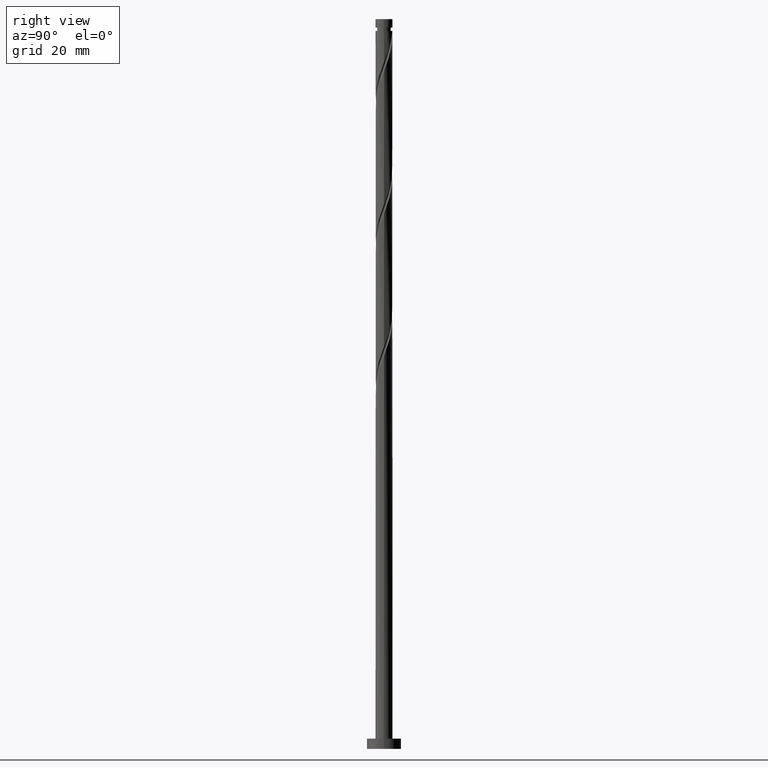
[diagram: clean part render]
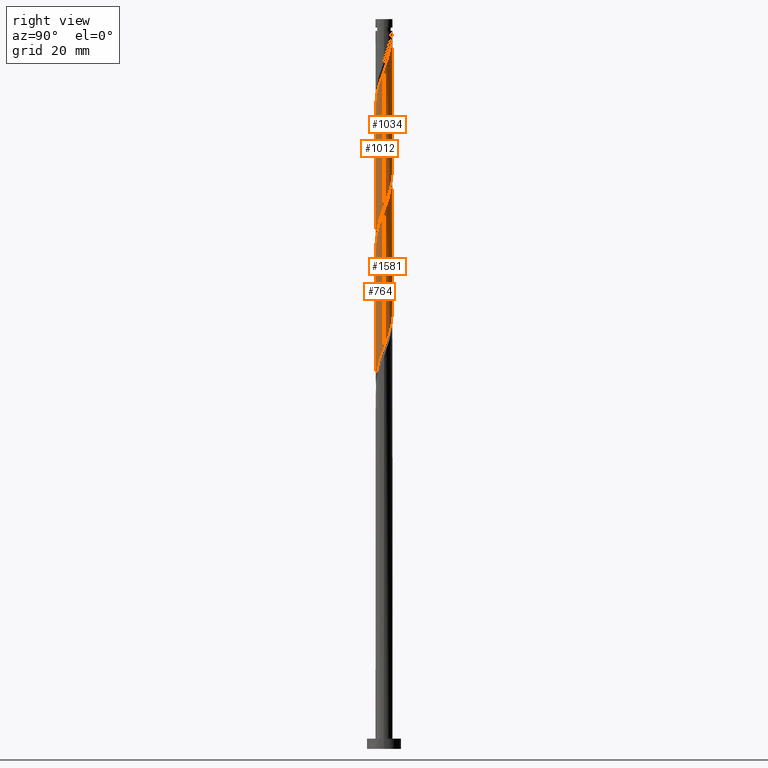
[diagram: same view with one multi-face feature highlighted, each face labeled with its STEP entity id]
A machine part, right view. The highlighted faces form ONE feature: a constant-radius fillet chain: 4 tangent blend faces with common blend radius 2.5 mm. The faces share edges in the B-rep.
Their STEP definitions:
[1] entity #764 (Cylinder):
#38 = CARTESIAN_POINT ( 'NONE',  ( -2.500000000000000000, 0.000000000000000000, 213.8100000000000023 ) ) ;
#47 = CARTESIAN_POINT ( 'NONE',  ( 2.500000000000000000, 3.061616997868383141E-16, 213.8100000000000023 ) ) ;
#110 = CARTESIAN_POINT ( 'NONE',  ( 0.4065817041674111287, -2.485324310909241330, 108.5382327498076194 ) ) ;
#132 = CARTESIAN_POINT ( 'NONE',  ( 1.814417076588193733, -1.746435307918773328, 151.8074635190384356 ) ) ;
#152 = DIRECTION ( 'NONE',  ( -0.000000000000000000, -0.000000000000000000, -1.000000000000000000 ) ) ;
#155 = CARTESIAN_POINT ( 'NONE',  ( -1.997029908174711155, -1.503951975914027184, 101.3266942882691666 ) ) ;
#160 = FACE_OUTER_BOUND ( 'NONE', #660, .T. ) ;
#185 = LINE ( 'NONE', #38, #742 ) ;
#193 = CARTESIAN_POINT ( 'NONE',  ( -1.733701828209132989, -1.801187933244147832, 141.3907968523717500 ) ) ;
#231 = CARTESIAN_POINT ( 'NONE',  ( -2.500000000000002665, -0.09943282584192326967, 136.3206356357025300 ) ) ;
#239 = CARTESIAN_POINT ( 'NONE',  ( 2.114376090707298150, -1.333946680735525359, 114.1472071087819984 ) ) ;
#247 = CARTESIAN_POINT ( 'NONE',  ( 2.500000000000002220, -0.09943282584190962781, 117.6148042228870736 ) ) ;
#250 = CARTESIAN_POINT ( 'NONE',  ( 0.2000098596587718269, -2.510406673947364276, 146.9997712113461148 ) ) ;
#281 = CARTESIAN_POINT ( 'NONE',  ( -1.579080582324884796, -1.938170403892419014, 102.9292583908332830 ) ) ;
#303 = CARTESIAN_POINT ( 'NONE',  ( -2.298919114669786268, -0.9823293257385166122, 99.72413018570506438 ) ) ;
#304 = VERTEX_POINT ( 'NONE', #1702 ) ;
#312 = CARTESIAN_POINT ( 'NONE',  ( -1.343744088061578079, -2.129905499866068475, 103.7305404421153270 ) ) ;
#314 = ORIENTED_EDGE ( 'NONE', *, *, #1813, .F. ) ;
#345 = CARTESIAN_POINT ( 'NONE',  ( -0.6980629606895826234, -2.400564121808310691, 144.5959250574998691 ) ) ;
#379 = CARTESIAN_POINT ( 'NONE',  ( 1.514998017198620817, -2.011697447541358930, 111.7433609549358096 ) ) ;
#382 = CARTESIAN_POINT ( 'NONE',  ( -2.114376090707300815, -1.333946680735525137, 139.7882327498075767 ) ) ;
#386 = CARTESIAN_POINT ( 'NONE',  ( 2.372170500257940073, -0.7891812958414545776, 115.7497712113461006 ) ) ;
#398 = CARTESIAN_POINT ( 'NONE',  ( -0.1032859222543209415, -2.497865492428302137, 146.1984891600640424 ) ) ;
#403 = CARTESIAN_POINT ( 'NONE',  ( 2.492102982822525181, -0.1985515625903721548, 117.3523353139101744 ) ) ;
#406 = CARTESIAN_POINT ( 'NONE',  ( 1.343744088061578079, -2.129905499866072471, 150.2048994164742908 ) ) ;
#418 = CARTESIAN_POINT ( 'NONE',  ( 1.579080582324886128, -1.938170403892422122, 151.0061814677563348 ) ) ;
#446 = CARTESIAN_POINT ( 'NONE',  ( -0.2000098596587736033, -2.510406673947360279, 106.9356686472435030 ) ) ;
#486 = CARTESIAN_POINT ( 'NONE',  ( -2.500000000000003109, -8.637054502972983423E-15, 136.0564647200696413 ) ) ;
#523 = CARTESIAN_POINT ( 'NONE',  ( 1.952405639219638056, -1.590678418946936512, 113.3459250574999260 ) ) ;
#526 = CARTESIAN_POINT ( 'NONE',  ( -2.372170500257942294, -0.7891812958414533563, 138.1856686472435172 ) ) ;
#536 = CARTESIAN_POINT ( 'NONE',  ( 2.418195489578344848, -0.7031900075677509632, 155.0125917241666400 ) ) ;
#564 = CARTESIAN_POINT ( 'NONE',  ( 1.997029908174711599, -1.503951975914030292, 152.6087455703204228 ) ) ;
#572 = CARTESIAN_POINT ( 'NONE',  ( 2.500000000000001776, -0.2031410963426237004, 156.3500973160545300 ) ) ;
#607 = CARTESIAN_POINT ( 'NONE',  ( -2.418195489578342183, -0.7031900075677479656, 98.92284813442300617 ) ) ;
#660 = EDGE_LOOP ( 'NONE', ( #1743, #672, #1799, #314 ) ) ;
#665 = CARTESIAN_POINT ( 'NONE',  ( -2.500000000000003109, -8.637054502972983423E-15, 136.0564647200696413 ) ) ;
#672 = ORIENTED_EDGE ( 'NONE', *, *, #1146, .F. ) ;
#687 = VERTEX_POINT ( 'NONE', #1180 ) ;
#726 = CARTESIAN_POINT ( 'NONE',  ( -2.179642739761229464, -1.261468643909284593, 100.5254122369870942 ) ) ;
#731 = DIRECTION ( 'NONE',  ( -0.000000000000000000, -0.000000000000000000, -1.000000000000000000 ) ) ;
#742 = VECTOR ( 'NONE', #731, 1000.000000000000000 ) ;
#755 = LINE ( 'NONE', #47, #1712 ) ;
#763 = CARTESIAN_POINT ( 'NONE',  ( -1.514998017198624813, -2.011697447541359818, 142.1920789036537656 ) ) ;
#764 = ADVANCED_FACE ( 'NONE', ( #160 ), #1440, .T. ) ;
#811 = CARTESIAN_POINT ( 'NONE',  ( 2.467203498451236765, -0.4036172657729013014, 155.8138737754486272 ) ) ;
#827 = CARTESIAN_POINT ( 'NONE',  ( 2.500000000000003109, 1.353512437262433092E-15, 156.8897980534028989 ) ) ;
#834 = CARTESIAN_POINT ( 'NONE',  ( 2.467994458320922568, -0.5011476491587927296, 116.5510532626281162 ) ) ;
#845 = EDGE_CURVE ( 'NONE', #1124, #687, #185, .T. ) ;
#855 = CARTESIAN_POINT ( 'NONE',  ( -2.500000000000001776, -0.2031410963426088234, 97.58534254253503093 ) ) ;
#887 = DIRECTION ( 'NONE',  ( -0.000000000000000000, -0.000000000000000000, -1.000000000000000000 ) ) ;
#901 = EDGE_CURVE ( 'NONE', #1168, #304, #755, .T. ) ;
#914 = CARTESIAN_POINT ( 'NONE',  ( -0.4065817041674137378, -2.485324310909244883, 145.3972071087820268 ) ) ;
#948 = CARTESIAN_POINT ( 'NONE',  ( 1.252271117205184803, -2.163750690124368159, 110.9420789036537798 ) ) ;
#955 = CARTESIAN_POINT ( 'NONE',  ( 0.9895442172117496771, -2.315803932707377388, 110.1407968523717500 ) ) ;
#983 = CARTESIAN_POINT ( 'NONE',  ( 2.298919114669788488, -0.9823293257385184996, 154.2113096728844823 ) ) ;
#1047 = CARTESIAN_POINT ( 'NONE',  ( -1.252271117205188133, -2.163750690124368603, 142.9933609549358096 ) ) ;
#1124 = VERTEX_POINT ( 'NONE', #486 ) ;
#1136 = CARTESIAN_POINT ( 'NONE',  ( -2.467203498451234545, -0.4036172657728994695, 98.12156608314099060 ) ) ;
#1146 = EDGE_CURVE ( 'NONE', #1124, #1168, #1821, .T. ) ;
#1165 = CARTESIAN_POINT ( 'NONE',  ( -1.069360832754714385, -2.259749412959354498, 104.5318224933973568 ) ) ;
#1168 = VERTEX_POINT ( 'NONE', #1836 ) ;
#1180 = CARTESIAN_POINT ( 'NONE',  ( -2.500000000000000000, 2.624767212591805226E-15, 97.04564180518667627 ) ) ;
#1223 = CARTESIAN_POINT ( 'NONE',  ( -2.492102982822526958, -0.1985515625903699066, 136.5831045446793723 ) ) ;
#1232 = CARTESIAN_POINT ( 'NONE',  ( 0.4974937185533112594, -2.450000000000001954, 147.8010532626281019 ) ) ;
#1255 = CARTESIAN_POINT ( 'NONE',  ( 2.276346542194957134, -1.077214942524114427, 114.9484891600640424 ) ) ;
#1258 = CARTESIAN_POINT ( 'NONE',  ( 0.7949775774478498036, -2.389593326052643185, 148.6023353139101744 ) ) ;
#1276 = CARTESIAN_POINT ( 'NONE',  ( -0.7949775774478505808, -2.389593326052640077, 105.3331045446794292 ) ) ;
#1285 = CARTESIAN_POINT ( 'NONE',  ( -2.500000000000000444, 2.624767212591805226E-15, 97.04564180518667627 ) ) ;
#1428 = CARTESIAN_POINT ( 'NONE',  ( -0.4974937185533117034, -2.450000000000000178, 106.1343865959614732 ) ) ;
#1440 = CYLINDRICAL_SURFACE ( 'NONE', #1595, 2.500000000000000000 ) ;
#1459 = DIRECTION ( 'NONE',  ( -1.000000000000000000, 0.000000000000000000, 0.000000000000000000 ) ) ;
#1467 = CARTESIAN_POINT ( 'NONE',  ( -1.952405639219642497, -1.590678418946936956, 140.5895148010897060 ) ) ;
#1521 = CARTESIAN_POINT ( 'NONE',  ( 0.6980629606895811801, -2.400564121808308471, 109.3395148010896634 ) ) ;
#1576 = CARTESIAN_POINT ( 'NONE',  ( 0.1032859222543187350, -2.497865492428300360, 107.7369506985255612 ) ) ;
#1595 = AXIS2_PLACEMENT_3D ( 'NONE', #1733, #887, #1459 ) ;
#1612 = CARTESIAN_POINT ( 'NONE',  ( -0.9895442172117522306, -2.315803932707379165, 143.7946430062178820 ) ) ;
#1639 =( BOUNDED_CURVE ( )  B_SPLINE_CURVE ( 2, ( #1658, #247, #403, #834, #386, #1255, #239, #523, #1649, #379, #948, #955, #1521, #110, #1576, #446, #1428, #1276, #1165, #312, #281, #1831, #155, #726, #303, #607, #1136, #855, #1285 ),
 .UNSPECIFIED., .F., .T. ) 
 B_SPLINE_CURVE_WITH_KNOTS ( ( 3, 2, 2, 2, 2, 2, 2, 2, 2, 2, 2, 2, 2, 2, 3 ),
 ( 0.8045271625973828833, 0.8076923076923077094, 0.8173076923076922906, 0.8269230769230768718, 0.8365384615384615641, 0.8461538461538461453, 0.8557692307692307265, 0.8653846153846154188, 0.8750000000000000000, 0.8846153846153845812, 0.8942307692307692735, 0.9038461538461538547, 0.9134615384615384359, 0.9230769230769231282, 0.9295271625973834384 ),
 .UNSPECIFIED. ) 
 CURVE ( )  GEOMETRIC_REPRESENTATION_ITEM ( )  RATIONAL_B_SPLINE_CURVE ( ( 0.9061636035682857360, 0.9069090390690742742, 0.9090909090909310430, 0.9024626128164345840, 0.9090909090909310430, 0.9024626128164345840, 0.9090909090909310430, 0.9024626128164345840, 0.9090909090909310430, 0.9024626128164345840, 0.9090909090909310430, 0.9024626128164345840, 0.9090909090909310430, 0.9024626128164345840, 0.9090909090909310430, 0.9024626128164345840, 0.9090909090909310430, 0.9024626128164345840, 0.9090909090909310430, 0.9024626128164345840, 0.9090909090909310430, 0.9024626128164345840, 0.9090909090909310430, 0.9024626128164345840, 0.9090909090909310430, 0.9024626128164345840, 0.9090909090909310430, 0.9046444828382909087, 0.9061636035682858470 ) ) 
 REPRESENTATION_ITEM ( '' )  );
#1649 = CARTESIAN_POINT ( 'NONE',  ( 1.733701828209130325, -1.801187933244147166, 112.5446430062178820 ) ) ;
#1652 = CARTESIAN_POINT ( 'NONE',  ( -2.276346542194961131, -1.077214942524115315, 138.9869506985255612 ) ) ;
#1658 = CARTESIAN_POINT ( 'NONE',  ( 2.500000000000001332, 3.394998047056068232E-15, 117.8789751385200475 ) ) ;
#1702 = CARTESIAN_POINT ( 'NONE',  ( 2.500000000000001332, 3.394998047056068232E-15, 117.8789751385200475 ) ) ;
#1712 = VECTOR ( 'NONE', #152, 1000.000000000000000 ) ;
#1733 = CARTESIAN_POINT ( 'NONE',  ( 0.000000000000000000, 0.000000000000000000, 213.8100000000000023 ) ) ;
#1743 = ORIENTED_EDGE ( 'NONE', *, *, #901, .F. ) ;
#1789 = CARTESIAN_POINT ( 'NONE',  ( -2.467994458320926565, -0.5011476491587926185, 137.3843865959615016 ) ) ;
#1797 = CARTESIAN_POINT ( 'NONE',  ( 2.179642739761230796, -1.261468643909288589, 153.4100276216024952 ) ) ;
#1799 = ORIENTED_EDGE ( 'NONE', *, *, #845, .T. ) ;
#1813 = EDGE_CURVE ( 'NONE', #304, #687, #1639, .T. ) ;
#1816 = CARTESIAN_POINT ( 'NONE',  ( 1.069360832754713053, -2.259749412959357606, 149.4036173651921615 ) ) ;
#1821 =( BOUNDED_CURVE ( )  B_SPLINE_CURVE ( 2, ( #665, #231, #1223, #1789, #526, #1652, #382, #1467, #193, #763, #1047, #1612, #345, #914, #398, #250, #1232, #1258, #1816, #406, #418, #132, #564, #1797, #983, #536, #811, #572, #827 ),
 .UNSPECIFIED., .F., .T. ) 
 B_SPLINE_CURVE_WITH_KNOTS ( ( 3, 2, 2, 2, 2, 2, 2, 2, 2, 2, 2, 2, 2, 2, 3 ),
 ( 0.3045271625973833829, 0.3076923076923077094, 0.3173076923076922906, 0.3269230769230768718, 0.3365384615384615641, 0.3461538461538461453, 0.3557692307692307265, 0.3653846153846154188, 0.3750000000000000000, 0.3846153846153845812, 0.3942307692307692735, 0.4038461538461538547, 0.4134615384615384359, 0.4230769230769231282, 0.4295271625973829943 ),
 .UNSPECIFIED. ) 
 CURVE ( )  GEOMETRIC_REPRESENTATION_ITEM ( )  RATIONAL_B_SPLINE_CURVE ( ( 0.9061636035682911761, 0.9069090390690799364, 0.9090909090909364831, 0.9024626128164396910, 0.9090909090909364831, 0.9024626128164396910, 0.9090909090909364831, 0.9024626128164396910, 0.9090909090909364831, 0.9024626128164396910, 0.9090909090909364831, 0.9024626128164396910, 0.9090909090909364831, 0.9024626128164396910, 0.9090909090909364831, 0.9024626128164396910, 0.9090909090909364831, 0.9024626128164396910, 0.9090909090909364831, 0.9024626128164396910, 0.9090909090909364831, 0.9024626128164396910, 0.9090909090909364831, 0.9024626128164396910, 0.9090909090909364831, 0.9024626128164396910, 0.9090909090909364831, 0.9046444828382965708, 0.9061636035682909540 ) ) 
 REPRESENTATION_ITEM ( '' )  );
#1831 = CARTESIAN_POINT ( 'NONE',  ( -1.814417076588191735, -1.746435307918769553, 102.1279763395511964 ) ) ;
#1836 = CARTESIAN_POINT ( 'NONE',  ( 2.500000000000003109, 1.353512437262433092E-15, 156.8897980534028989 ) ) ;
[2] entity #1581 (Cylinder):
#17 = CARTESIAN_POINT ( 'NONE',  ( 2.492102982822526958, 0.1985515625903690184, 157.4164378780127151 ) ) ;
#28 = CARTESIAN_POINT ( 'NONE',  ( 2.114376090707300815, 1.333946680735525581, 160.6215660831409195 ) ) ;
#45 = CARTESIAN_POINT ( 'NONE',  ( 2.276346542194961131, 1.077214942524114205, 159.8202840318588756 ) ) ;
#47 = CARTESIAN_POINT ( 'NONE',  ( 2.500000000000000000, 3.061616997868383141E-16, 213.8100000000000023 ) ) ;
#49 =( BOUNDED_CURVE ( )  B_SPLINE_CURVE ( 2, ( #229, #1673, #1237, #1230, #1101, #255, #1665, #240, #102, #956, #395, #809, #248, #94, #1805, #130, #964, #1522, #404, #1530, #825, #1390, #663, #121, #686, #534, #971, #1246, #371 ),
 .UNSPECIFIED., .F., .T. ) 
 B_SPLINE_CURVE_WITH_KNOTS ( ( 3, 2, 2, 2, 2, 2, 2, 2, 2, 2, 2, 2, 2, 2, 3 ),
 ( 0.6795271625973832164, 0.6826923076923077094, 0.6923076923076922906, 0.7019230769230768718, 0.7115384615384615641, 0.7211538461538461453, 0.7307692307692307265, 0.7403846153846154188, 0.7500000000000000000, 0.7596153846153845812, 0.7692307692307692735, 0.7788461538461538547, 0.7884615384615384359, 0.7980769230769231282, 0.8045271625973828833 ),
 .UNSPECIFIED. ) 
 CURVE ( )  GEOMETRIC_REPRESENTATION_ITEM ( )  RATIONAL_B_SPLINE_CURVE ( ( 0.9061636035682857360, 0.9069090390690743853, 0.9090909090909310430, 0.9024626128164345840, 0.9090909090909310430, 0.9024626128164345840, 0.9090909090909310430, 0.9024626128164345840, 0.9090909090909310430, 0.9024626128164345840, 0.9090909090909310430, 0.9024626128164345840, 0.9090909090909310430, 0.9024626128164345840, 0.9090909090909310430, 0.9024626128164345840, 0.9090909090909310430, 0.9024626128164345840, 0.9090909090909310430, 0.9024626128164345840, 0.9090909090909310430, 0.9024626128164345840, 0.9090909090909310430, 0.9024626128164345840, 0.9090909090909310430, 0.9024626128164345840, 0.9090909090909310430, 0.9046444828382913528, 0.9061636035682857360 ) ) 
 REPRESENTATION_ITEM ( '' )  );
#64 = DIRECTION ( 'NONE',  ( -0.000000000000000000, -0.000000000000000000, -1.000000000000000000 ) ) ;
#87 = VECTOR ( 'NONE', #64, 1000.000000000000000 ) ;
#94 = CARTESIAN_POINT ( 'NONE',  ( -0.4065817041674119614, 2.485324310909241330, 129.3715660831409195 ) ) ;
#102 = CARTESIAN_POINT ( 'NONE',  ( -1.733701828209130325, 1.801187933244147166, 133.3779763395511964 ) ) ;
#107 = EDGE_CURVE ( 'NONE', #559, #304, #49, .T. ) ;
#118 = VERTEX_POINT ( 'NONE', #1822 ) ;
#121 = CARTESIAN_POINT ( 'NONE',  ( 2.179642739761229464, 1.261468643909283927, 121.3587455703204370 ) ) ;
#130 = CARTESIAN_POINT ( 'NONE',  ( 0.2000098596587730204, 2.510406673947360279, 127.7690019805768031 ) ) ;
#152 = DIRECTION ( 'NONE',  ( -0.000000000000000000, -0.000000000000000000, -1.000000000000000000 ) ) ;
#166 = CARTESIAN_POINT ( 'NONE',  ( -2.179642739761231240, 1.261468643909288145, 174.2433609549358380 ) ) ;
#175 = EDGE_LOOP ( 'NONE', ( #1253, #444, #310, #279 ) ) ;
#229 = CARTESIAN_POINT ( 'NONE',  ( -2.500000000000000000, 2.624767212591805226E-15, 138.7123084718533335 ) ) ;
#240 = CARTESIAN_POINT ( 'NONE',  ( -1.952405639219638500, 1.590678418946935180, 134.1792583908332404 ) ) ;
#248 = CARTESIAN_POINT ( 'NONE',  ( -0.6980629606895811801, 2.400564121808308471, 130.1728481344230488 ) ) ;
#255 = CARTESIAN_POINT ( 'NONE',  ( -2.276346542194957134, 1.077214942524114649, 135.7818224933973852 ) ) ;
#279 = ORIENTED_EDGE ( 'NONE', *, *, #1610, .F. ) ;
#297 = CARTESIAN_POINT ( 'NONE',  ( 1.952405639219643385, 1.590678418946935624, 161.4228481344230488 ) ) ;
#304 = VERTEX_POINT ( 'NONE', #1702 ) ;
#306 = CARTESIAN_POINT ( 'NONE',  ( -1.579080582324886128, 1.938170403892422122, 171.8395148010896492 ) ) ;
#310 = ORIENTED_EDGE ( 'NONE', *, *, #107, .F. ) ;
#370 = CARTESIAN_POINT ( 'NONE',  ( 0.000000000000000000, 0.000000000000000000, 213.8100000000000023 ) ) ;
#371 = CARTESIAN_POINT ( 'NONE',  ( 2.500000000000001332, 3.394998047056068232E-15, 117.8789751385200475 ) ) ;
#395 = CARTESIAN_POINT ( 'NONE',  ( -1.252271117205185469, 2.163750690124368159, 131.7754122369871368 ) ) ;
#404 = CARTESIAN_POINT ( 'NONE',  ( 1.069360832754715496, 2.259749412959354498, 125.3651558267307138 ) ) ;
#444 = ORIENTED_EDGE ( 'NONE', *, *, #901, .T. ) ;
#448 = CARTESIAN_POINT ( 'NONE',  ( 0.1032859222543222460, 2.497865492428302137, 167.0318224933973852 ) ) ;
#455 = CARTESIAN_POINT ( 'NONE',  ( -0.7949775774478503587, 2.389593326052643185, 169.4356686472435456 ) ) ;
#463 = CARTESIAN_POINT ( 'NONE',  ( 0.6980629606895842887, 2.400564121808310691, 165.4292583908332404 ) ) ;
#492 = FACE_OUTER_BOUND ( 'NONE', #175, .T. ) ;
#534 = CARTESIAN_POINT ( 'NONE',  ( 2.418195489578342627, 0.7031900075677467443, 119.7561814677563063 ) ) ;
#559 = VERTEX_POINT ( 'NONE', #928 ) ;
#591 = CARTESIAN_POINT ( 'NONE',  ( 1.733701828209132989, 1.801187933244147610, 162.2241301857050360 ) ) ;
#600 = CARTESIAN_POINT ( 'NONE',  ( -2.467203498451236765, 0.4036172657729010793, 176.6472071087819700 ) ) ;
#618 = CARTESIAN_POINT ( 'NONE',  ( -2.298919114669788488, 0.9823293257385184996, 175.0446430062178536 ) ) ;
#663 = CARTESIAN_POINT ( 'NONE',  ( 1.997029908174711599, 1.503951975914026962, 122.1600276216024952 ) ) ;
#686 = CARTESIAN_POINT ( 'NONE',  ( 2.298919114669786268, 0.9823293257385163901, 120.5574635190383788 ) ) ;
#720 = CARTESIAN_POINT ( 'NONE',  ( 2.467994458320926565, 0.5011476491587921744, 158.2177199292947876 ) ) ;
#729 = CARTESIAN_POINT ( 'NONE',  ( -2.500000000000003553, 4.157750912253660431E-15, 177.7231313867362417 ) ) ;
#755 = LINE ( 'NONE', #47, #1712 ) ;
#773 = LINE ( 'NONE', #1331, #87 ) ;
#809 = CARTESIAN_POINT ( 'NONE',  ( -0.9895442172117500101, 2.315803932707376944, 130.9741301857050644 ) ) ;
#825 = CARTESIAN_POINT ( 'NONE',  ( 1.579080582324886350, 1.938170403892418792, 123.7625917241666258 ) ) ;
#866 =( BOUNDED_CURVE ( )  B_SPLINE_CURVE ( 2, ( #1578, #876, #17, #720, #1592, #45, #28, #297, #591, #868, #1714, #1421, #463, #1295, #448, #1723, #1448, #455, #1431, #1011, #306, #1438, #1303, #166, #618, #1457, #600, #1159, #729 ),
 .UNSPECIFIED., .F., .T. ) 
 B_SPLINE_CURVE_WITH_KNOTS ( ( 3, 2, 2, 2, 2, 2, 2, 2, 2, 2, 2, 2, 2, 2, 3 ),
 ( 0.4295271625973829943, 0.4326923076923077094, 0.4423076923076922906, 0.4519230769230768718, 0.4615384615384615641, 0.4711538461538461453, 0.4807692307692307265, 0.4903846153846154188, 0.5000000000000000000, 0.5096153846153845812, 0.5192307692307691624, 0.5288461538461538547, 0.5384615384615384359, 0.5480769230769231282, 0.5545271625973832164 ),
 .UNSPECIFIED. ) 
 CURVE ( )  GEOMETRIC_REPRESENTATION_ITEM ( )  RATIONAL_B_SPLINE_CURVE ( ( 0.9061636035682909540, 0.9069090390690796033, 0.9090909090909364831, 0.9024626128164396910, 0.9090909090909364831, 0.9024626128164396910, 0.9090909090909364831, 0.9024626128164396910, 0.9090909090909364831, 0.9024626128164396910, 0.9090909090909364831, 0.9024626128164396910, 0.9090909090909364831, 0.9024626128164396910, 0.9090909090909364831, 0.9024626128164396910, 0.9090909090909364831, 0.9024626128164396910, 0.9090909090909364831, 0.9024626128164396910, 0.9090909090909364831, 0.9024626128164396910, 0.9090909090909364831, 0.9024626128164396910, 0.9090909090909364831, 0.9024626128164396910, 0.9090909090909364831, 0.9046444828382964598, 0.9061636035682911761 ) ) 
 REPRESENTATION_ITEM ( '' )  );
#868 = CARTESIAN_POINT ( 'NONE',  ( 1.514998017198625702, 2.011697447541358930, 163.0254122369871084 ) ) ;
#876 = CARTESIAN_POINT ( 'NONE',  ( 2.500000000000004441, 0.09943282584191055762, 157.1539689690358159 ) ) ;
#901 = EDGE_CURVE ( 'NONE', #1168, #304, #755, .T. ) ;
#928 = CARTESIAN_POINT ( 'NONE',  ( -2.500000000000000000, 2.624767212591805226E-15, 138.7123084718533335 ) ) ;
#956 = CARTESIAN_POINT ( 'NONE',  ( -1.514998017198621261, 2.011697447541358486, 132.5766942882691239 ) ) ;
#964 = CARTESIAN_POINT ( 'NONE',  ( 0.4974937185533120365, 2.450000000000000178, 126.9677199292948160 ) ) ;
#971 = CARTESIAN_POINT ( 'NONE',  ( 2.467203498451234545, 0.4036172657728998026, 118.9548994164742908 ) ) ;
#1011 = CARTESIAN_POINT ( 'NONE',  ( -1.343744088061578745, 2.129905499866072471, 171.0382327498076620 ) ) ;
#1101 = CARTESIAN_POINT ( 'NONE',  ( -2.372170500257940073, 0.7891812958414539114, 136.5831045446794576 ) ) ;
#1119 = AXIS2_PLACEMENT_3D ( 'NONE', #370, #1503, #1739 ) ;
#1159 = CARTESIAN_POINT ( 'NONE',  ( -2.500000000000003109, 0.2031410963426168170, 177.1834306493879012 ) ) ;
#1168 = VERTEX_POINT ( 'NONE', #1836 ) ;
#1230 = CARTESIAN_POINT ( 'NONE',  ( -2.467994458320922568, 0.5011476491587923965, 137.3843865959614448 ) ) ;
#1237 = CARTESIAN_POINT ( 'NONE',  ( -2.492102982822524293, 0.1985515625903708781, 138.1856686472434887 ) ) ;
#1246 = CARTESIAN_POINT ( 'NONE',  ( 2.499999999999998224, 0.2031410963426256155, 118.4186758758683595 ) ) ;
#1253 = ORIENTED_EDGE ( 'NONE', *, *, #1336, .F. ) ;
#1295 = CARTESIAN_POINT ( 'NONE',  ( 0.4065817041674140153, 2.485324310909244883, 166.2305404421153128 ) ) ;
#1303 = CARTESIAN_POINT ( 'NONE',  ( -1.997029908174711599, 1.503951975914030292, 173.4420789036537371 ) ) ;
#1331 = CARTESIAN_POINT ( 'NONE',  ( -2.500000000000000000, 0.000000000000000000, 213.8100000000000023 ) ) ;
#1336 = EDGE_CURVE ( 'NONE', #1168, #118, #866, .T. ) ;
#1390 = CARTESIAN_POINT ( 'NONE',  ( 1.814417076588192401, 1.746435307918769553, 122.9613096728845250 ) ) ;
#1421 = CARTESIAN_POINT ( 'NONE',  ( 0.9895442172117524526, 2.315803932707379165, 164.6279763395511964 ) ) ;
#1431 = CARTESIAN_POINT ( 'NONE',  ( -1.069360832754713719, 2.259749412959357162, 170.2369506985255327 ) ) ;
#1438 = CARTESIAN_POINT ( 'NONE',  ( -1.814417076588193956, 1.746435307918773105, 172.6407968523717784 ) ) ;
#1448 = CARTESIAN_POINT ( 'NONE',  ( -0.4974937185533109263, 2.450000000000001954, 168.6343865959614448 ) ) ;
#1457 = CARTESIAN_POINT ( 'NONE',  ( -2.418195489578345292, 0.7031900075677495199, 175.8459250574999544 ) ) ;
#1503 = DIRECTION ( 'NONE',  ( -0.000000000000000000, -0.000000000000000000, -1.000000000000000000 ) ) ;
#1522 = CARTESIAN_POINT ( 'NONE',  ( 0.7949775774478509138, 2.389593326052640077, 126.1664378780127720 ) ) ;
#1530 = CARTESIAN_POINT ( 'NONE',  ( 1.343744088061578301, 2.129905499866068475, 124.5638737754486414 ) ) ;
#1578 = CARTESIAN_POINT ( 'NONE',  ( 2.500000000000003109, 1.353512437262433092E-15, 156.8897980534028989 ) ) ;
#1581 = ADVANCED_FACE ( 'NONE', ( #492 ), #1638, .T. ) ;
#1592 = CARTESIAN_POINT ( 'NONE',  ( 2.372170500257943182, 0.7891812958414519130, 159.0190019805767747 ) ) ;
#1610 = EDGE_CURVE ( 'NONE', #118, #559, #773, .T. ) ;
#1638 = CYLINDRICAL_SURFACE ( 'NONE', #1119, 2.500000000000000000 ) ;
#1665 = CARTESIAN_POINT ( 'NONE',  ( -2.114376090707298150, 1.333946680735525359, 134.9805404421153128 ) ) ;
#1673 = CARTESIAN_POINT ( 'NONE',  ( -2.500000000000000444, 0.09943282584191892592, 138.4481375562203880 ) ) ;
#1702 = CARTESIAN_POINT ( 'NONE',  ( 2.500000000000001332, 3.394998047056068232E-15, 117.8789751385200475 ) ) ;
#1712 = VECTOR ( 'NONE', #152, 1000.000000000000000 ) ;
#1714 = CARTESIAN_POINT ( 'NONE',  ( 1.252271117205188355, 2.163750690124368603, 163.8266942882691239 ) ) ;
#1723 = CARTESIAN_POINT ( 'NONE',  ( -0.2000098596587715771, 2.510406673947364276, 167.8331045446794008 ) ) ;
#1739 = DIRECTION ( 'NONE',  ( -1.000000000000000000, 0.000000000000000000, 0.000000000000000000 ) ) ;
#1805 = CARTESIAN_POINT ( 'NONE',  ( -0.1032859222543195260, 2.497865492428299916, 128.5702840318588756 ) ) ;
#1822 = CARTESIAN_POINT ( 'NONE',  ( -2.500000000000003553, 4.157750912253660431E-15, 177.7231313867362417 ) ) ;
#1836 = CARTESIAN_POINT ( 'NONE',  ( 2.500000000000003109, 1.353512437262433092E-15, 156.8897980534028989 ) ) ;
[3] entity #1012 (Cylinder):
#4 = CARTESIAN_POINT ( 'NONE',  ( 0.9895442172117496771, -2.315803932707377388, 151.8074635190383788 ) ) ;
#13 = CARTESIAN_POINT ( 'NONE',  ( -2.418195489578342183, -0.7031900075677479656, 140.5895148010897060 ) ) ;
#24 = CARTESIAN_POINT ( 'NONE',  ( 2.372170500257940073, -0.7891812958414545776, 157.4164378780127436 ) ) ;
#30 = CARTESIAN_POINT ( 'NONE',  ( -0.4065817041674137378, -2.485324310909244883, 187.0638737754486556 ) ) ;
#64 = DIRECTION ( 'NONE',  ( -0.000000000000000000, -0.000000000000000000, -1.000000000000000000 ) ) ;
#87 = VECTOR ( 'NONE', #64, 1000.000000000000000 ) ;
#99 = CARTESIAN_POINT ( 'NONE',  ( -2.276346542194961131, -1.077214942524115315, 180.6536173651922752 ) ) ;
#118 = VERTEX_POINT ( 'NONE', #1822 ) ;
#147 = CARTESIAN_POINT ( 'NONE',  ( 2.114376090707298150, -1.333946680735525359, 155.8138737754486272 ) ) ;
#203 = DIRECTION ( 'NONE',  ( -1.000000000000000000, 0.000000000000000000, 0.000000000000000000 ) ) ;
#237 = CARTESIAN_POINT ( 'NONE',  ( -2.467994458320926565, -0.5011476491587926185, 179.0510532626281304 ) ) ;
#291 = VERTEX_POINT ( 'NONE', #437 ) ;
#293 = CARTESIAN_POINT ( 'NONE',  ( -2.500000000000000000, -0.2031410963426157623, 139.2520092092016739 ) ) ;
#308 = CARTESIAN_POINT ( 'NONE',  ( 2.298919114669788488, -0.9823293257385184996, 195.8779763395511395 ) ) ;
#322 = CARTESIAN_POINT ( 'NONE',  ( -1.997029908174711155, -1.503951975914027184, 142.9933609549358096 ) ) ;
#354 = DIRECTION ( 'NONE',  ( -0.000000000000000000, -0.000000000000000000, -1.000000000000000000 ) ) ;
#376 = CARTESIAN_POINT ( 'NONE',  ( -2.500000000000003553, -0.09943282584191803775, 177.9873023023691871 ) ) ;
#435 = CARTESIAN_POINT ( 'NONE',  ( -1.069360832754714385, -2.259749412959354498, 146.1984891600640424 ) ) ;
#437 = CARTESIAN_POINT ( 'NONE',  ( 2.500000000000001332, 3.394998047056068232E-15, 159.5456418051866763 ) ) ;
#457 = CARTESIAN_POINT ( 'NONE',  ( 2.418195489578344848, -0.7031900075677509632, 196.6792583908332688 ) ) ;
#465 = CARTESIAN_POINT ( 'NONE',  ( 2.500000000000003997, -9.721360046636257510E-16, 198.5564647200695845 ) ) ;
#476 = CARTESIAN_POINT ( 'NONE',  ( 2.467203498451236765, -0.4036172657729013014, 197.4805404421152843 ) ) ;
#505 = CYLINDRICAL_SURFACE ( 'NONE', #1060, 2.500000000000000000 ) ;
#506 = ORIENTED_EDGE ( 'NONE', *, *, #644, .F. ) ;
#539 = EDGE_LOOP ( 'NONE', ( #1644, #506, #1262, #879 ) ) ;
#559 = VERTEX_POINT ( 'NONE', #928 ) ;
#578 = CARTESIAN_POINT ( 'NONE',  ( 0.4065817041674111287, -2.485324310909241330, 150.2048994164743192 ) ) ;
#589 = CARTESIAN_POINT ( 'NONE',  ( -1.343744088061578079, -2.129905499866068475, 145.3972071087819984 ) ) ;
#593 = CARTESIAN_POINT ( 'NONE',  ( -0.1032859222543209415, -2.497865492428302137, 187.8651558267306712 ) ) ;
#621 = CARTESIAN_POINT ( 'NONE',  ( 1.343744088061578079, -2.129905499866072471, 191.8715660831409764 ) ) ;
#644 = EDGE_CURVE ( 'NONE', #118, #1163, #1449, .T. ) ;
#646 = LINE ( 'NONE', #1195, #1623 ) ;
#668 = CARTESIAN_POINT ( 'NONE',  ( -1.952405639219642497, -1.590678418946936956, 182.2561814677563916 ) ) ;
#705 = CARTESIAN_POINT ( 'NONE',  ( -2.298919114669786268, -0.9823293257385166122, 141.3907968523717500 ) ) ;
#712 = CARTESIAN_POINT ( 'NONE',  ( -2.114376090707300815, -1.333946680735525137, 181.4548994164742055 ) ) ;
#717 = CARTESIAN_POINT ( 'NONE',  ( 1.514998017198620817, -2.011697447541358930, 153.4100276216024668 ) ) ;
#736 = CARTESIAN_POINT ( 'NONE',  ( 0.1032859222543187350, -2.497865492428300360, 149.4036173651922184 ) ) ;
#773 = LINE ( 'NONE', #1331, #87 ) ;
#782 = FACE_OUTER_BOUND ( 'NONE', #539, .T. ) ;
#806 = CARTESIAN_POINT ( 'NONE',  ( -2.372170500257942294, -0.7891812958414533563, 179.8523353139101744 ) ) ;
#874 = CARTESIAN_POINT ( 'NONE',  ( -0.7949775774478505808, -2.389593326052640077, 146.9997712113460580 ) ) ;
#878 = CARTESIAN_POINT ( 'NONE',  ( 0.2000098596587718269, -2.510406673947364276, 188.6664378780127720 ) ) ;
#879 = ORIENTED_EDGE ( 'NONE', *, *, #1825, .F. ) ;
#883 = CARTESIAN_POINT ( 'NONE',  ( 2.492102982822525181, -0.1985515625903721548, 159.0190019805768600 ) ) ;
#891 = CARTESIAN_POINT ( 'NONE',  ( 2.500000000000001332, 3.394998047056068232E-15, 159.5456418051866763 ) ) ;
#895 = CARTESIAN_POINT ( 'NONE',  ( 1.069360832754713053, -2.259749412959357606, 191.0702840318588187 ) ) ;
#928 = CARTESIAN_POINT ( 'NONE',  ( -2.500000000000000000, 2.624767212591805226E-15, 138.7123084718533335 ) ) ;
#945 = CARTESIAN_POINT ( 'NONE',  ( -2.492102982822526958, -0.1985515625903699066, 178.2497712113460580 ) ) ;
#991 = CARTESIAN_POINT ( 'NONE',  ( -2.500000000000000000, 2.624767212591805226E-15, 138.7123084718533335 ) ) ;
#999 = CARTESIAN_POINT ( 'NONE',  ( -2.179642739761229464, -1.261468643909284593, 142.1920789036537656 ) ) ;
#1012 = ADVANCED_FACE ( 'NONE', ( #782 ), #505, .T. ) ;
#1014 = CARTESIAN_POINT ( 'NONE',  ( 0.7949775774478498036, -2.389593326052643185, 190.2690019805768316 ) ) ;
#1017 = CARTESIAN_POINT ( 'NONE',  ( 2.276346542194957134, -1.077214942524114427, 156.6151558267306996 ) ) ;
#1021 = CARTESIAN_POINT ( 'NONE',  ( -0.9895442172117522306, -2.315803932707379165, 185.4613096728845392 ) ) ;
#1039 = CARTESIAN_POINT ( 'NONE',  ( -1.252271117205188133, -2.163750690124368603, 184.6600276216024668 ) ) ;
#1053 = DIRECTION ( 'NONE',  ( -0.000000000000000000, -0.000000000000000000, -1.000000000000000000 ) ) ;
#1060 = AXIS2_PLACEMENT_3D ( 'NONE', #1771, #354, #203 ) ;
#1121 = CARTESIAN_POINT ( 'NONE',  ( -1.733701828209132989, -1.801187933244147832, 183.0574635190383788 ) ) ;
#1128 = CARTESIAN_POINT ( 'NONE',  ( 1.952405639219638056, -1.590678418946936512, 155.0125917241665547 ) ) ;
#1145 = CARTESIAN_POINT ( 'NONE',  ( -2.467203498451234545, -0.4036172657728994695, 139.7882327498076336 ) ) ;
#1163 = VERTEX_POINT ( 'NONE', #1668 ) ;
#1195 = CARTESIAN_POINT ( 'NONE',  ( 2.500000000000000000, 3.061616997868383141E-16, 213.8100000000000023 ) ) ;
#1262 = ORIENTED_EDGE ( 'NONE', *, *, #1610, .T. ) ;
#1265 = CARTESIAN_POINT ( 'NONE',  ( 1.733701828209130325, -1.801187933244147166, 154.2113096728845676 ) ) ;
#1281 = CARTESIAN_POINT ( 'NONE',  ( 2.179642739761230796, -1.261468643909288589, 195.0766942882691524 ) ) ;
#1297 = CARTESIAN_POINT ( 'NONE',  ( 2.500000000000004885, -0.2031410963426133198, 198.0167639827212724 ) ) ;
#1314 = CARTESIAN_POINT ( 'NONE',  ( 1.579080582324886128, -1.938170403892422122, 192.6728481344229635 ) ) ;
#1331 = CARTESIAN_POINT ( 'NONE',  ( -2.500000000000000000, 0.000000000000000000, 213.8100000000000023 ) ) ;
#1417 = CARTESIAN_POINT ( 'NONE',  ( 2.500000000000001332, -0.09943282584192011941, 159.2814708895537308 ) ) ;
#1422 = EDGE_CURVE ( 'NONE', #1163, #291, #646, .T. ) ;
#1436 = CARTESIAN_POINT ( 'NONE',  ( -1.814417076588191735, -1.746435307918769553, 143.7946430062178536 ) ) ;
#1441 =( BOUNDED_CURVE ( )  B_SPLINE_CURVE ( 2, ( #891, #1417, #883, #1554, #24, #1017, #147, #1128, #1265, #717, #1455, #4, #1445, #578, #736, #1563, #1590, #874, #435, #589, #1701, #1436, #322, #999, #705, #13, #1145, #293, #991 ),
 .UNSPECIFIED., .F., .T. ) 
 B_SPLINE_CURVE_WITH_KNOTS ( ( 3, 2, 2, 2, 2, 2, 2, 2, 2, 2, 2, 2, 2, 2, 3 ),
 ( 0.5545271625973832164, 0.5576923076923077094, 0.5673076923076922906, 0.5769230769230768718, 0.5865384615384615641, 0.5961538461538461453, 0.6057692307692307265, 0.6153846153846154188, 0.6250000000000000000, 0.6346153846153845812, 0.6442307692307692735, 0.6538461538461538547, 0.6634615384615384359, 0.6730769230769231282, 0.6795271625973832164 ),
 .UNSPECIFIED. ) 
 CURVE ( )  GEOMETRIC_REPRESENTATION_ITEM ( )  RATIONAL_B_SPLINE_CURVE ( ( 0.9061636035682857360, 0.9069090390690743853, 0.9090909090909310430, 0.9024626128164345840, 0.9090909090909310430, 0.9024626128164345840, 0.9090909090909310430, 0.9024626128164345840, 0.9090909090909310430, 0.9024626128164345840, 0.9090909090909310430, 0.9024626128164345840, 0.9090909090909310430, 0.9024626128164345840, 0.9090909090909310430, 0.9024626128164345840, 0.9090909090909310430, 0.9024626128164345840, 0.9090909090909310430, 0.9024626128164345840, 0.9090909090909310430, 0.9024626128164345840, 0.9090909090909310430, 0.9024626128164345840, 0.9090909090909310430, 0.9024626128164345840, 0.9090909090909310430, 0.9046444828382911307, 0.9061636035682857360 ) ) 
 REPRESENTATION_ITEM ( '' )  );
#1445 = CARTESIAN_POINT ( 'NONE',  ( 0.6980629606895811801, -2.400564121808308471, 151.0061814677564200 ) ) ;
#1449 =( BOUNDED_CURVE ( )  B_SPLINE_CURVE ( 2, ( #1647, #376, #945, #237, #806, #99, #712, #668, #1121, #1838, #1039, #1021, #1717, #30, #593, #878, #1587, #1014, #895, #621, #1314, #1580, #1452, #1281, #308, #457, #476, #1297, #465 ),
 .UNSPECIFIED., .F., .T. ) 
 B_SPLINE_CURVE_WITH_KNOTS ( ( 3, 2, 2, 2, 2, 2, 2, 2, 2, 2, 2, 2, 2, 2, 3 ),
 ( 0.5545271625973832164, 0.5576923076923077094, 0.5673076923076922906, 0.5769230769230768718, 0.5865384615384615641, 0.5961538461538461453, 0.6057692307692308376, 0.6153846153846154188, 0.6250000000000000000, 0.6346153846153845812, 0.6442307692307691624, 0.6538461538461538547, 0.6634615384615384359, 0.6730769230769231282, 0.6795271625973833274 ),
 .UNSPECIFIED. ) 
 CURVE ( )  GEOMETRIC_REPRESENTATION_ITEM ( )  RATIONAL_B_SPLINE_CURVE ( ( 0.9061636035682911761, 0.9069090390690797143, 0.9090909090909364831, 0.9024626128164396910, 0.9090909090909364831, 0.9024626128164396910, 0.9090909090909364831, 0.9024626128164396910, 0.9090909090909364831, 0.9024626128164396910, 0.9090909090909364831, 0.9024626128164396910, 0.9090909090909364831, 0.9024626128164396910, 0.9090909090909364831, 0.9024626128164396910, 0.9090909090909364831, 0.9024626128164396910, 0.9090909090909364831, 0.9024626128164396910, 0.9090909090909364831, 0.9024626128164396910, 0.9090909090909364831, 0.9024626128164396910, 0.9090909090909364831, 0.9024626128164396910, 0.9090909090909364831, 0.9046444828382962378, 0.9061636035682911761 ) ) 
 REPRESENTATION_ITEM ( '' )  );
#1452 = CARTESIAN_POINT ( 'NONE',  ( 1.997029908174711599, -1.503951975914030292, 194.2754122369870800 ) ) ;
#1455 = CARTESIAN_POINT ( 'NONE',  ( 1.252271117205184803, -2.163750690124368159, 152.6087455703204228 ) ) ;
#1554 = CARTESIAN_POINT ( 'NONE',  ( 2.467994458320922568, -0.5011476491587927296, 158.2177199292947591 ) ) ;
#1563 = CARTESIAN_POINT ( 'NONE',  ( -0.2000098596587736033, -2.510406673947360279, 148.6023353139101744 ) ) ;
#1580 = CARTESIAN_POINT ( 'NONE',  ( 1.814417076588193733, -1.746435307918773328, 193.4741301857050360 ) ) ;
#1587 = CARTESIAN_POINT ( 'NONE',  ( 0.4974937185533112594, -2.450000000000001954, 189.4677199292947876 ) ) ;
#1590 = CARTESIAN_POINT ( 'NONE',  ( -0.4974937185533117034, -2.450000000000000178, 147.8010532626281872 ) ) ;
#1610 = EDGE_CURVE ( 'NONE', #118, #559, #773, .T. ) ;
#1623 = VECTOR ( 'NONE', #1053, 1000.000000000000000 ) ;
#1644 = ORIENTED_EDGE ( 'NONE', *, *, #1422, .F. ) ;
#1647 = CARTESIAN_POINT ( 'NONE',  ( -2.500000000000003553, 4.157750912253660431E-15, 177.7231313867362417 ) ) ;
#1668 = CARTESIAN_POINT ( 'NONE',  ( 2.500000000000003997, -9.721360046636257510E-16, 198.5564647200695845 ) ) ;
#1701 = CARTESIAN_POINT ( 'NONE',  ( -1.579080582324884796, -1.938170403892419014, 144.5959250574999260 ) ) ;
#1717 = CARTESIAN_POINT ( 'NONE',  ( -0.6980629606895826234, -2.400564121808310691, 186.2625917241665547 ) ) ;
#1771 = CARTESIAN_POINT ( 'NONE',  ( 0.000000000000000000, 0.000000000000000000, 213.8100000000000023 ) ) ;
#1822 = CARTESIAN_POINT ( 'NONE',  ( -2.500000000000003553, 4.157750912253660431E-15, 177.7231313867362417 ) ) ;
#1825 = EDGE_CURVE ( 'NONE', #291, #559, #1441, .T. ) ;
#1838 = CARTESIAN_POINT ( 'NONE',  ( -1.514998017198624813, -2.011697447541359818, 183.8587455703204796 ) ) ;
[4] entity #1034 (Cylinder):
#2 = ORIENTED_EDGE ( 'NONE', *, *, #205, .T. ) ;
#5 = CARTESIAN_POINT ( 'NONE',  ( 1.252271117205188355, 2.163750690124368603, 205.4933609549357811 ) ) ;
#40 = VECTOR ( 'NONE', #1129, 1000.000000000000000 ) ;
#51 = CARTESIAN_POINT ( 'NONE',  ( 0.4065817041674140153, 2.485324310909244883, 207.8972071087820268 ) ) ;
#77 = FACE_OUTER_BOUND ( 'NONE', #989, .T. ) ;
#85 = CARTESIAN_POINT ( 'NONE',  ( -2.499999999999986677, 0.000000000000000000, 210.3010532626281304 ) ) ;
#101 = CARTESIAN_POINT ( 'NONE',  ( 1.069360832754715496, 2.259749412959354498, 167.0318224933973568 ) ) ;
#120 = CARTESIAN_POINT ( 'NONE',  ( -1.733701828209130325, 1.801187933244147166, 175.0446430062178251 ) ) ;
#138 = CARTESIAN_POINT ( 'NONE',  ( -1.952405639219638500, 1.590678418946935180, 175.8459250574999260 ) ) ;
#139 = CARTESIAN_POINT ( 'NONE',  ( -2.500000000000000000, 0.000000000000000000, 213.8100000000000023 ) ) ;
#148 = CARTESIAN_POINT ( 'NONE',  ( 0.6980629606895842887, 2.400564121808310691, 207.0959250574998407 ) ) ;
#156 = CARTESIAN_POINT ( 'NONE',  ( 1.952405639219643385, 1.590678418946935624, 203.0895148010897344 ) ) ;
#205 = EDGE_CURVE ( 'NONE', #1125, #1574, #368, .T. ) ;
#254 = CARTESIAN_POINT ( 'NONE',  ( -2.499999999999999556, -3.193092876856696809E-15, 180.3789751385199907 ) ) ;
#261 = EDGE_CURVE ( 'NONE', #1125, #1357, #295, .T. ) ;
#263 = CARTESIAN_POINT ( 'NONE',  ( -2.276346542194957134, 1.077214942524114649, 177.4484891600640424 ) ) ;
#270 = ORIENTED_EDGE ( 'NONE', *, *, #1690, .F. ) ;
#282 = CARTESIAN_POINT ( 'NONE',  ( 2.467994458320926565, 0.5011476491587921744, 199.8843865959614448 ) ) ;
#291 = VERTEX_POINT ( 'NONE', #437 ) ;
#295 = LINE ( 'NONE', #139, #40 ) ;
#298 = EDGE_CURVE ( 'NONE', #1163, #1574, #1264, .T. ) ;
#368 = CIRCLE ( 'NONE', #613, 2.499999999999986677 ) ;
#380 = CARTESIAN_POINT ( 'NONE',  ( 0.000000000000000000, 0.000000000000000000, 210.3010532626281304 ) ) ;
#394 = CARTESIAN_POINT ( 'NONE',  ( 0.7949775774478509138, 2.389593326052640077, 167.8331045446794008 ) ) ;
#414 = CARTESIAN_POINT ( 'NONE',  ( -0.4065817041674119614, 2.485324310909241330, 171.0382327498076336 ) ) ;
#416 = ORIENTED_EDGE ( 'NONE', *, *, #261, .F. ) ;
#437 = CARTESIAN_POINT ( 'NONE',  ( 2.500000000000001332, 3.394998047056068232E-15, 159.5456418051866763 ) ) ;
#514 = CARTESIAN_POINT ( 'NONE',  ( -0.4974937185533110373, 2.450000000000002842, 210.3010532626281304 ) ) ;
#543 = CARTESIAN_POINT ( 'NONE',  ( 2.500000000000001332, 3.394998047056068232E-15, 159.5456418051866763 ) ) ;
#596 = AXIS2_PLACEMENT_3D ( 'NONE', #923, #656, #1189 ) ;
#613 = AXIS2_PLACEMENT_3D ( 'NONE', #380, #1371, #1094 ) ;
#646 = LINE ( 'NONE', #1195, #1623 ) ;
#656 = DIRECTION ( 'NONE',  ( -0.000000000000000000, -0.000000000000000000, -1.000000000000000000 ) ) ;
#685 = CARTESIAN_POINT ( 'NONE',  ( 2.500000000000000000, 0.2031410963426152072, 160.0853425425349599 ) ) ;
#693 =( BOUNDED_CURVE ( )  B_SPLINE_CURVE ( 2, ( #254, #1408, #1399, #970, #1545, #263, #808, #138, #120, #963, #1820, #1370, #1116, #414, #1100, #1229, #980, #394, #101, #1388, #1804, #1236, #1379, #1785, #824, #1794, #1220, #685, #543 ),
 .UNSPECIFIED., .F., .T. ) 
 B_SPLINE_CURVE_WITH_KNOTS ( ( 3, 2, 2, 2, 2, 2, 2, 2, 2, 2, 2, 2, 2, 2, 3 ),
 ( 0.4295271625973832164, 0.4326923076923077094, 0.4423076923076922906, 0.4519230769230769273, 0.4615384615384615641, 0.4711538461538461453, 0.4807692307692307820, 0.4903846153846153633, 0.5000000000000000000, 0.5096153846153845812, 0.5192307692307692735, 0.5288461538461538547, 0.5384615384615384359, 0.5480769230769231282, 0.5545271625973832164 ),
 .UNSPECIFIED. ) 
 CURVE ( )  GEOMETRIC_REPRESENTATION_ITEM ( )  RATIONAL_B_SPLINE_CURVE ( ( 0.9061636035682858470, 0.9069090390690744963, 0.9090909090909310430, 0.9024626128164345840, 0.9090909090909310430, 0.9024626128164345840, 0.9090909090909310430, 0.9024626128164345840, 0.9090909090909310430, 0.9024626128164345840, 0.9090909090909310430, 0.9024626128164345840, 0.9090909090909310430, 0.9024626128164345840, 0.9090909090909310430, 0.9024626128164345840, 0.9090909090909310430, 0.9024626128164345840, 0.9090909090909310430, 0.9024626128164345840, 0.9090909090909310430, 0.9024626128164345840, 0.9090909090909310430, 0.9024626128164345840, 0.9090909090909310430, 0.9024626128164345840, 0.9090909090909310430, 0.9046444828382911307, 0.9061636035682857360 ) ) 
 REPRESENTATION_ITEM ( '' )  );
#727 = CARTESIAN_POINT ( 'NONE',  ( 2.500000000000003997, -9.721360046636257510E-16, 198.5564647200695845 ) ) ;
#808 = CARTESIAN_POINT ( 'NONE',  ( -2.114376090707298150, 1.333946680735525359, 176.6472071087819984 ) ) ;
#824 = CARTESIAN_POINT ( 'NONE',  ( 2.298919114669786268, 0.9823293257385163901, 162.2241301857050928 ) ) ;
#923 = CARTESIAN_POINT ( 'NONE',  ( 0.000000000000000000, 0.000000000000000000, 213.8100000000000023 ) ) ;
#963 = CARTESIAN_POINT ( 'NONE',  ( -1.514998017198621261, 2.011697447541358486, 174.2433609549358096 ) ) ;
#970 = CARTESIAN_POINT ( 'NONE',  ( -2.467994458320922568, 0.5011476491587923965, 179.0510532626280735 ) ) ;
#980 = CARTESIAN_POINT ( 'NONE',  ( 0.4974937185533120365, 2.450000000000000178, 168.6343865959615016 ) ) ;
#989 = EDGE_LOOP ( 'NONE', ( #1395, #1171, #270, #416, #2 ) ) ;
#992 = CARTESIAN_POINT ( 'NONE',  ( 2.276346542194961131, 1.077214942524114205, 201.4869506985255612 ) ) ;
#1000 = CARTESIAN_POINT ( 'NONE',  ( 2.372170500257943182, 0.7891812958414519130, 200.6856686472434887 ) ) ;
#1034 = ADVANCED_FACE ( 'NONE', ( #77 ), #1364, .T. ) ;
#1041 = CARTESIAN_POINT ( 'NONE',  ( 0.1032859222543222460, 2.497865492428302137, 208.6984891600640140 ) ) ;
#1053 = DIRECTION ( 'NONE',  ( -0.000000000000000000, -0.000000000000000000, -1.000000000000000000 ) ) ;
#1094 = DIRECTION ( 'NONE',  ( -1.000000000000000000, 0.000000000000000000, 0.000000000000000000 ) ) ;
#1100 = CARTESIAN_POINT ( 'NONE',  ( -0.1032859222543195260, 2.497865492428299916, 170.2369506985256464 ) ) ;
#1116 = CARTESIAN_POINT ( 'NONE',  ( -0.6980629606895811801, 2.400564121808308471, 171.8395148010896776 ) ) ;
#1125 = VERTEX_POINT ( 'NONE', #85 ) ;
#1129 = DIRECTION ( 'NONE',  ( -0.000000000000000000, -0.000000000000000000, -1.000000000000000000 ) ) ;
#1163 = VERTEX_POINT ( 'NONE', #1668 ) ;
#1171 = ORIENTED_EDGE ( 'NONE', *, *, #1422, .T. ) ;
#1177 = CARTESIAN_POINT ( 'NONE',  ( -2.499999999999999556, -3.193092876856696809E-15, 180.3789751385199907 ) ) ;
#1189 = DIRECTION ( 'NONE',  ( -1.000000000000000000, 0.000000000000000000, 0.000000000000000000 ) ) ;
#1195 = CARTESIAN_POINT ( 'NONE',  ( 2.500000000000000000, 3.061616997868383141E-16, 213.8100000000000023 ) ) ;
#1220 = CARTESIAN_POINT ( 'NONE',  ( 2.467203498451234545, 0.4036172657728998026, 160.6215660831409764 ) ) ;
#1229 = CARTESIAN_POINT ( 'NONE',  ( 0.2000098596587730204, 2.510406673947360279, 169.4356686472434887 ) ) ;
#1236 = CARTESIAN_POINT ( 'NONE',  ( 1.814417076588192401, 1.746435307918769553, 164.6279763395511679 ) ) ;
#1264 =( BOUNDED_CURVE ( )  B_SPLINE_CURVE ( 2, ( #727, #1469, #1429, #282, #1000, #992, #1277, #156, #1419, #1316, #5, #1287, #148, #51, #1041, #1745, #1556 ),
 .UNSPECIFIED., .F., .T. ) 
 B_SPLINE_CURVE_WITH_KNOTS ( ( 3, 2, 2, 2, 2, 2, 2, 2, 3 ),
 ( 0.6795271625973833274, 0.6826923076923077094, 0.6923076923076922906, 0.7019230769230768718, 0.7115384615384615641, 0.7211538461538460343, 0.7307692307692307265, 0.7403846153846153078, 0.7499999999999998890 ),
 .UNSPECIFIED. ) 
 CURVE ( )  GEOMETRIC_REPRESENTATION_ITEM ( )  RATIONAL_B_SPLINE_CURVE ( ( 0.9061636035682911761, 0.9069090390690799364, 0.9090909090909364831, 0.9024626128164396910, 0.9090909090909364831, 0.9024626128164396910, 0.9090909090909364831, 0.9024626128164396910, 0.9090909090909364831, 0.9024626128164396910, 0.9090909090909364831, 0.9024626128164396910, 0.9090909090909364831, 0.9024626128164396910, 0.9090909090909364831, 0.9024626128164398020, 0.9090909090909363721 ) ) 
 REPRESENTATION_ITEM ( '' )  );
#1277 = CARTESIAN_POINT ( 'NONE',  ( 2.114376090707300815, 1.333946680735525581, 202.2882327498075483 ) ) ;
#1287 = CARTESIAN_POINT ( 'NONE',  ( 0.9895442172117524526, 2.315803932707379165, 206.2946430062178820 ) ) ;
#1316 = CARTESIAN_POINT ( 'NONE',  ( 1.514998017198625702, 2.011697447541358930, 204.6920789036537940 ) ) ;
#1357 = VERTEX_POINT ( 'NONE', #1177 ) ;
#1364 = CYLINDRICAL_SURFACE ( 'NONE', #596, 2.500000000000000000 ) ;
#1370 = CARTESIAN_POINT ( 'NONE',  ( -0.9895442172117500101, 2.315803932707376944, 172.6407968523717216 ) ) ;
#1371 = DIRECTION ( 'NONE',  ( -0.000000000000000000, -0.000000000000000000, -1.000000000000000000 ) ) ;
#1379 = CARTESIAN_POINT ( 'NONE',  ( 1.997029908174711599, 1.503951975914026962, 163.8266942882691808 ) ) ;
#1388 = CARTESIAN_POINT ( 'NONE',  ( 1.343744088061578301, 2.129905499866068475, 166.2305404421153128 ) ) ;
#1395 = ORIENTED_EDGE ( 'NONE', *, *, #298, .F. ) ;
#1399 = CARTESIAN_POINT ( 'NONE',  ( -2.492102982822524293, 0.1985515625903708781, 179.8523353139101459 ) ) ;
#1408 = CARTESIAN_POINT ( 'NONE',  ( -2.500000000000000000, 0.09943282584191952267, 180.1148042228870167 ) ) ;
#1419 = CARTESIAN_POINT ( 'NONE',  ( 1.733701828209132989, 1.801187933244147610, 203.8907968523716931 ) ) ;
#1422 = EDGE_CURVE ( 'NONE', #1163, #291, #646, .T. ) ;
#1429 = CARTESIAN_POINT ( 'NONE',  ( 2.492102982822526958, 0.1985515625903690184, 199.0831045446794008 ) ) ;
#1469 = CARTESIAN_POINT ( 'NONE',  ( 2.500000000000002665, 0.09943282584192100759, 198.8206356357025015 ) ) ;
#1545 = CARTESIAN_POINT ( 'NONE',  ( -2.372170500257940073, 0.7891812958414539114, 178.2497712113461148 ) ) ;
#1556 = CARTESIAN_POINT ( 'NONE',  ( -0.4974937185533110373, 2.450000000000002842, 210.3010532626281019 ) ) ;
#1574 = VERTEX_POINT ( 'NONE', #514 ) ;
#1623 = VECTOR ( 'NONE', #1053, 1000.000000000000000 ) ;
#1668 = CARTESIAN_POINT ( 'NONE',  ( 2.500000000000003997, -9.721360046636257510E-16, 198.5564647200695845 ) ) ;
#1690 = EDGE_CURVE ( 'NONE', #1357, #291, #693, .T. ) ;
#1745 = CARTESIAN_POINT ( 'NONE',  ( -0.2000098596587680799, 2.510406673947363831, 209.4997712113460864 ) ) ;
#1785 = CARTESIAN_POINT ( 'NONE',  ( 2.179642739761229464, 1.261468643909283927, 163.0254122369870800 ) ) ;
#1794 = CARTESIAN_POINT ( 'NONE',  ( 2.418195489578342627, 0.7031900075677467443, 161.4228481344230488 ) ) ;
#1804 = CARTESIAN_POINT ( 'NONE',  ( 1.579080582324886350, 1.938170403892418792, 165.4292583908332404 ) ) ;
#1820 = CARTESIAN_POINT ( 'NONE',  ( -1.252271117205185469, 2.163750690124368159, 173.4420789036537940 ) ) ;